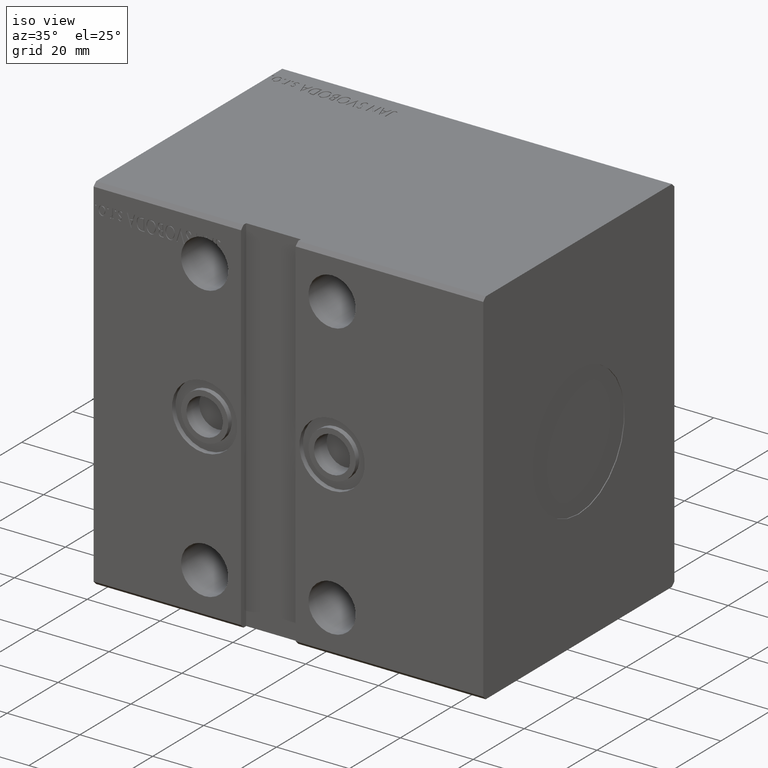
[diagram: clean part render]
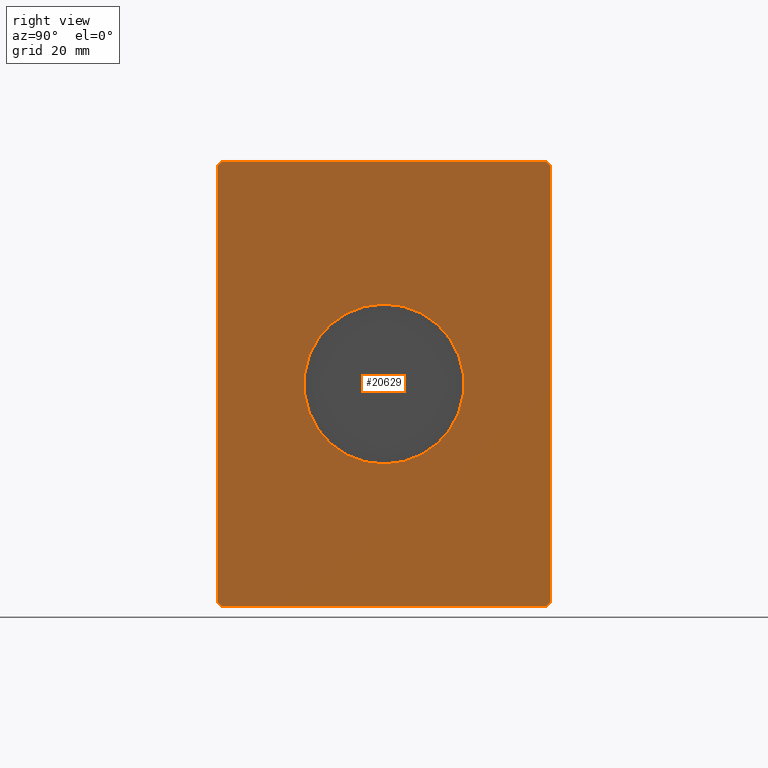
[diagram: tour spotlight — one face highlighted and labeled with its STEP entity id]
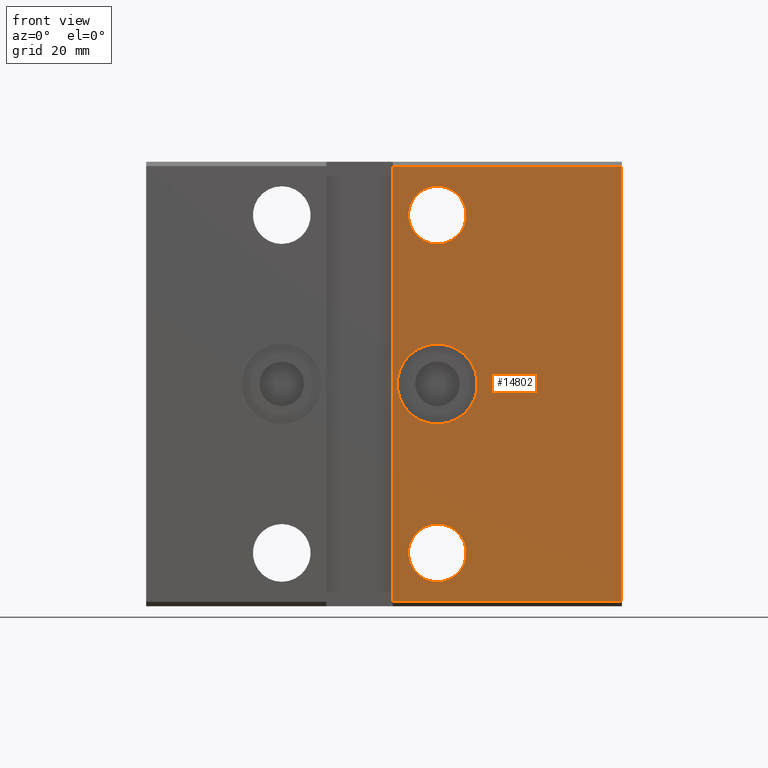
[diagram: tour spotlight — one face highlighted and labeled with its STEP entity id]
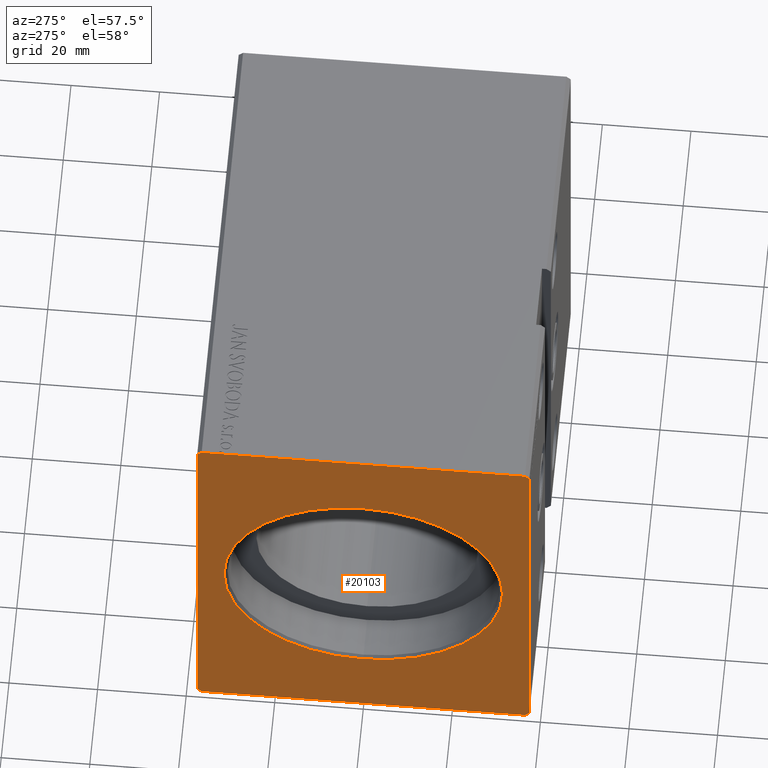
[diagram: tour spotlight — one face highlighted and labeled with its STEP entity id]
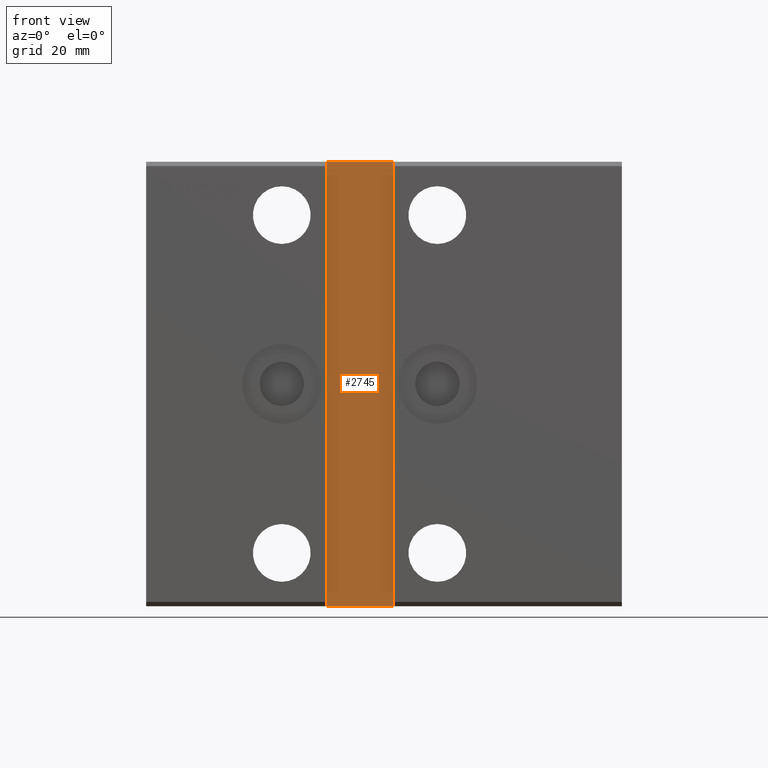
[diagram: tour spotlight — one face highlighted and labeled with its STEP entity id]
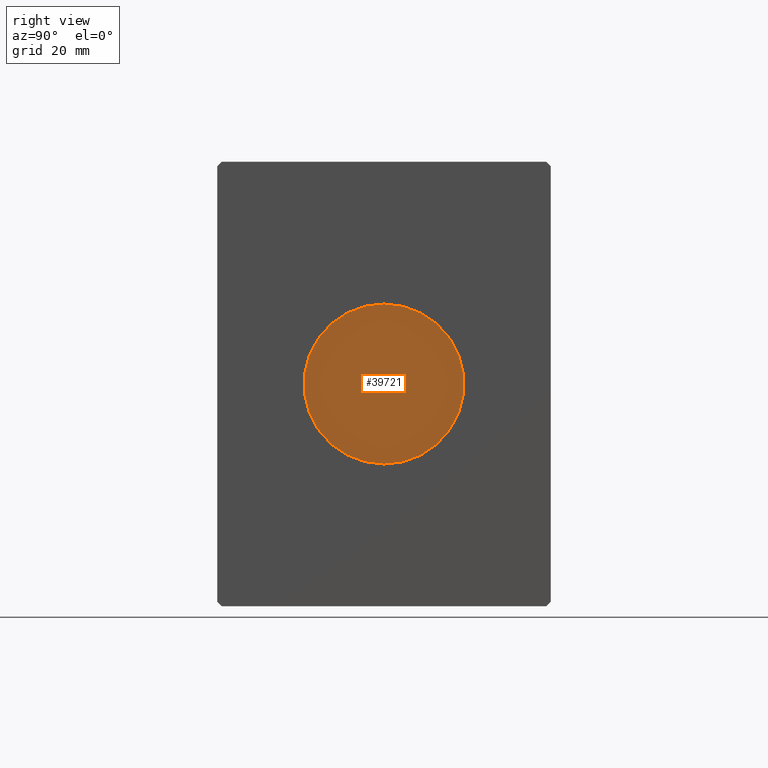
[diagram: tour spotlight — one face highlighted and labeled with its STEP entity id]
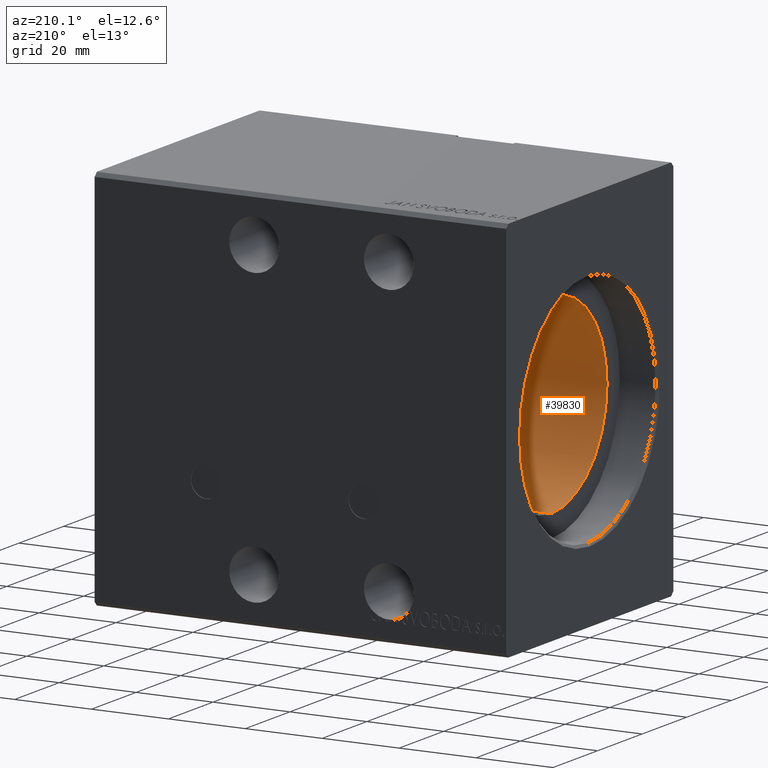
[diagram: tour spotlight — one face highlighted and labeled with its STEP entity id]
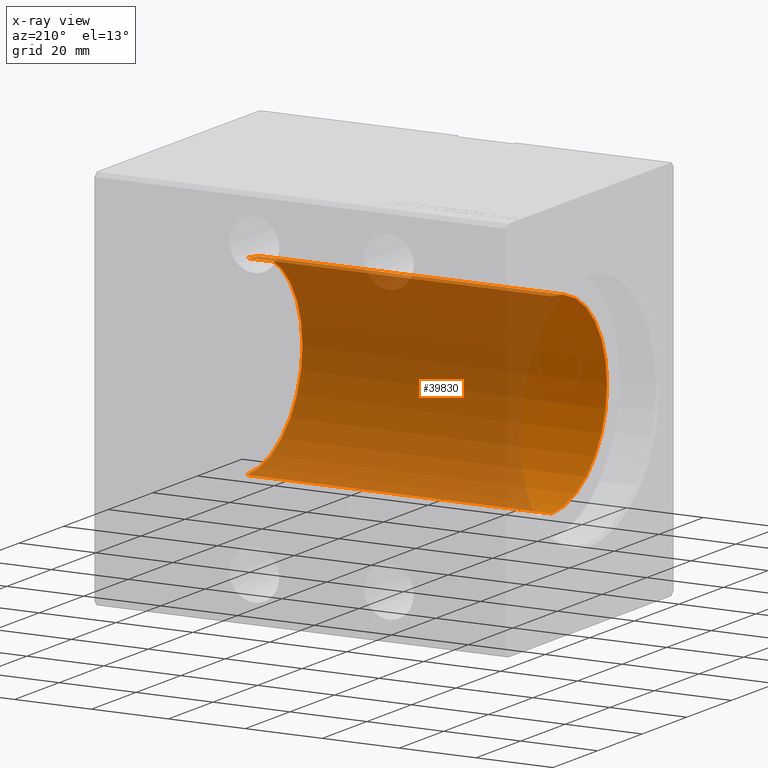
[diagram: x-ray of the same camera — body ghosted, this tour face saturated]
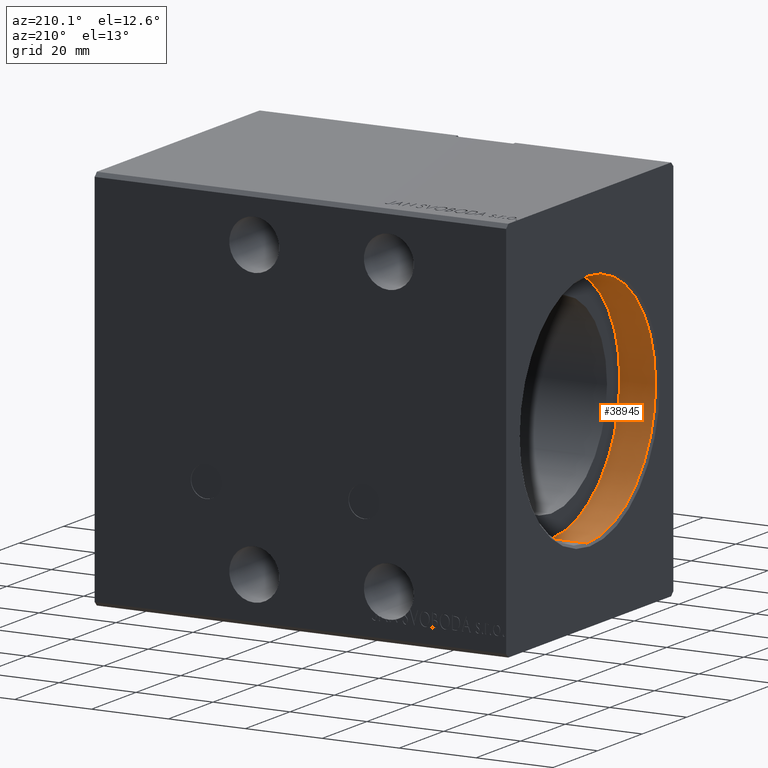
[diagram: tour spotlight — one face highlighted and labeled with its STEP entity id]
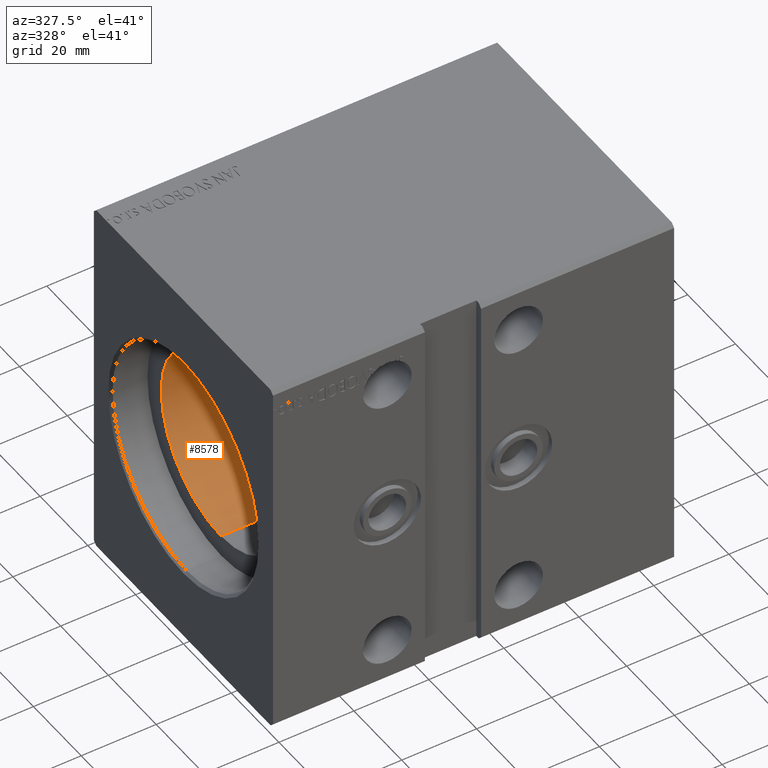
[diagram: tour spotlight — one face highlighted and labeled with its STEP entity id]
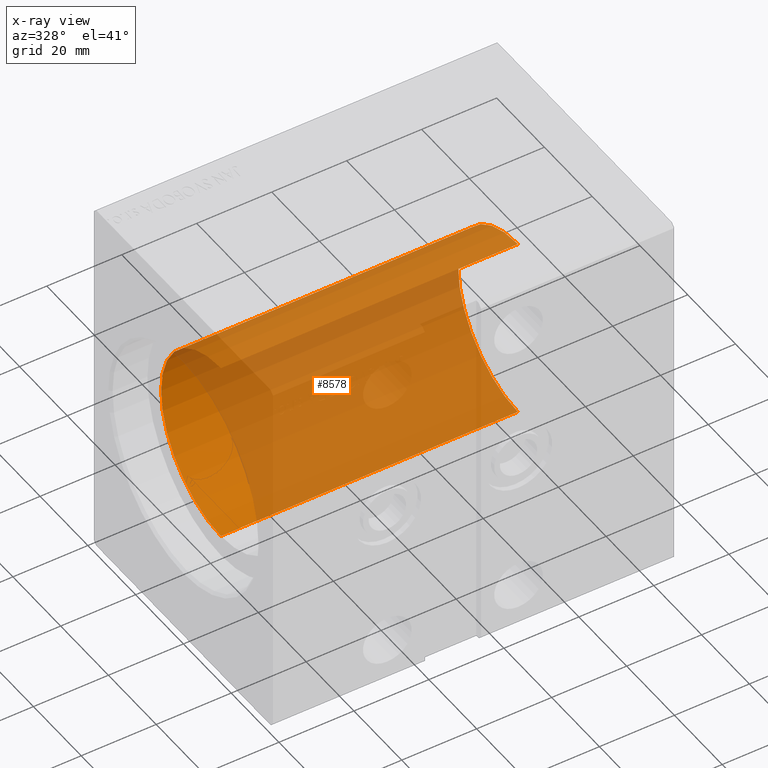
[diagram: x-ray of the same camera — body ghosted, this tour face saturated]
A machine part: a face-by-face anatomy tour. The part has 775 B-rep faces; the first image is the clean iso view, then the 8 largest visible faces are spotlighted one at a time (largest first), each with its STEP entity span.

Face 1 — right view, entity #20629. In plain terms, the highlighted planar face has unit normal (1, 0, 0).
Definition (entity closure, byte-faithful):
#1154 = DIRECTION ( 'NONE',  ( 0.000000000000000000, 0.000000000000000000, 1.000000000000000000 ) ) ;
#1582 = CARTESIAN_POINT ( 'NONE',  ( 107.0000000000000000, 0.000000000000000000, 0.000000000000000000 ) ) ;
#1747 = VERTEX_POINT ( 'NONE', #40442 ) ;
#1756 = AXIS2_PLACEMENT_3D ( 'NONE', #1582, #20745, #26720 ) ;
#4471 = VERTEX_POINT ( 'NONE', #16391 ) ;
#4619 = VECTOR ( 'NONE', #25911, 1000.000000000000000 ) ;
#6252 = CARTESIAN_POINT ( 'NONE',  ( 107.0000000000000000, -36.50000000000001421, 49.99999999999998579 ) ) ;
#7619 = CARTESIAN_POINT ( 'NONE',  ( 107.0000000000000000, 36.50000000000000711, -50.00000000000000000 ) ) ;
#8016 = CARTESIAN_POINT ( 'NONE',  ( 107.0000000000000000, 37.50000000000000711, 49.00000000000000000 ) ) ;
#8743 = CARTESIAN_POINT ( 'NONE',  ( 107.0000000000000000, 0.000000000000000000, -18.00000000000000000 ) ) ;
#9142 = CARTESIAN_POINT ( 'NONE',  ( 107.0000000000000000, -37.50000000000001421, -49.00000000000000000 ) ) ;
#9533 = VECTOR ( 'NONE', #11745, 1000.000000000000000 ) ;
#10598 = ORIENTED_EDGE ( 'NONE', *, *, #13272, .T. ) ;
#10748 = CARTESIAN_POINT ( 'NONE',  ( 107.0000000000000000, 0.000000000000000000, 0.000000000000000000 ) ) ;
#10752 = ORIENTED_EDGE ( 'NONE', *, *, #28898, .T. ) ;
#11745 = DIRECTION ( 'NONE',  ( 0.000000000000000000, 1.000000000000000000, 0.000000000000000000 ) ) ;
#12288 = VERTEX_POINT ( 'NONE', #29279 ) ;
#12487 = ORIENTED_EDGE ( 'NONE', *, *, #33639, .T. ) ;
#12533 = DIRECTION ( 'NONE',  ( 0.000000000000000000, -1.000000000000000000, -1.901066822988281457E-16 ) ) ;
#13272 = EDGE_CURVE ( 'NONE', #38986, #1747, #37462, .T. ) ;
#13333 = LINE ( 'NONE', #32898, #4619 ) ;
#14557 = FACE_OUTER_BOUND ( 'NONE', #30604, .T. ) ;
#15833 = CIRCLE ( 'NONE', #34306, 18.00000000000000000 ) ;
#16012 = VECTOR ( 'NONE', #36124, 1000.000000000000114 ) ;
#16062 = EDGE_CURVE ( 'NONE', #34821, #18884, #40568, .T. ) ;
#16391 = CARTESIAN_POINT ( 'NONE',  ( 107.0000000000000000, 37.50000000000000711, 49.00000000000000000 ) ) ;
#16538 = DIRECTION ( 'NONE',  ( 1.000000000000000000, 0.000000000000000000, 0.000000000000000000 ) ) ;
#16746 = ORIENTED_EDGE ( 'NONE', *, *, #23068, .F. ) ;
#17565 = VECTOR ( 'NONE', #1154, 1000.000000000000000 ) ;
#18059 = PLANE ( 'NONE',  #18402 ) ;
#18402 = AXIS2_PLACEMENT_3D ( 'NONE', #20953, #37024, #39699 ) ;
#18714 = EDGE_CURVE ( 'NONE', #27500, #4471, #32081, .T. ) ;
#18884 = VERTEX_POINT ( 'NONE', #6252 ) ;
#18941 = ORIENTED_EDGE ( 'NONE', *, *, #22666, .T. ) ;
#20629 = ADVANCED_FACE ( 'NONE', ( #40112, #14557 ), #18059, .T. ) ;
#20745 = DIRECTION ( 'NONE',  ( 1.000000000000000000, 0.000000000000000000, 0.000000000000000000 ) ) ;
#20794 = DIRECTION ( 'NONE',  ( 0.000000000000000000, -0.7071067811865474617, 0.7071067811865474617 ) ) ;
#20953 = CARTESIAN_POINT ( 'NONE',  ( 107.0000000000000000, 0.000000000000000000, 0.000000000000000000 ) ) ;
#20977 = CARTESIAN_POINT ( 'NONE',  ( 107.0000000000000000, -37.50000000000001421, -49.00000000000000000 ) ) ;
#21060 = LINE ( 'NONE', #36741, #16012 ) ;
#21196 = LINE ( 'NONE', #8016, #39100 ) ;
#21598 = DIRECTION ( 'NONE',  ( 0.000000000000000000, 0.7071067811865500152, -0.7071067811865451302 ) ) ;
#21646 = CARTESIAN_POINT ( 'NONE',  ( 107.0000000000000000, -36.50000000000000711, -50.00000000000000000 ) ) ;
#22158 = ORIENTED_EDGE ( 'NONE', *, *, #16062, .T. ) ;
#22534 = LINE ( 'NONE', #32212, #31261 ) ;
#22666 = EDGE_CURVE ( 'NONE', #26739, #38986, #13333, .T. ) ;
#23068 = EDGE_CURVE ( 'NONE', #25438, #12288, #15833, .T. ) ;
#24855 = ORIENTED_EDGE ( 'NONE', *, *, #18714, .T. ) ;
#25438 = VERTEX_POINT ( 'NONE', #8743 ) ;
#25715 = ORIENTED_EDGE ( 'NONE', *, *, #30339, .T. ) ;
#25911 = DIRECTION ( 'NONE',  ( 0.000000000000000000, 0.000000000000000000, -1.000000000000000000 ) ) ;
#26720 = DIRECTION ( 'NONE',  ( 0.000000000000000000, 0.000000000000000000, -1.000000000000000000 ) ) ;
#26739 = VERTEX_POINT ( 'NONE', #33610 ) ;
#27349 = CARTESIAN_POINT ( 'NONE',  ( 107.0000000000000000, 36.50000000000000711, 50.00000000000000000 ) ) ;
#27500 = VERTEX_POINT ( 'NONE', #34927 ) ;
#27615 = LINE ( 'NONE', #21646, #9533 ) ;
#28792 = CARTESIAN_POINT ( 'NONE',  ( 107.0000000000000000, 37.50000000000000711, -49.00000000000000000 ) ) ;
#28898 = EDGE_CURVE ( 'NONE', #1747, #29474, #27615, .T. ) ;
#29279 = CARTESIAN_POINT ( 'NONE',  ( 107.0000000000000000, 2.204364238465235428E-15, 18.00000000000000000 ) ) ;
#29474 = VERTEX_POINT ( 'NONE', #7619 ) ;
#30339 = EDGE_CURVE ( 'NONE', #29474, #27500, #21060, .T. ) ;
#30604 = EDGE_LOOP ( 'NONE', ( #12487, #22158, #37690, #18941, #10598, #10752, #25715, #24855 ) ) ;
#30723 = CIRCLE ( 'NONE', #1756, 18.00000000000000000 ) ;
#31123 = EDGE_LOOP ( 'NONE', ( #16746, #37299 ) ) ;
#31261 = VECTOR ( 'NONE', #34723, 1000.000000000000114 ) ;
#32081 = LINE ( 'NONE', #28792, #17565 ) ;
#32212 = CARTESIAN_POINT ( 'NONE',  ( 107.0000000000000000, -36.50000000000001421, 49.99999999999998579 ) ) ;
#32603 = DIRECTION ( 'NONE',  ( 0.000000000000000000, 0.000000000000000000, -1.000000000000000000 ) ) ;
#32898 = CARTESIAN_POINT ( 'NONE',  ( 107.0000000000000000, -37.50000000000001421, 48.99999999999998579 ) ) ;
#33610 = CARTESIAN_POINT ( 'NONE',  ( 107.0000000000000000, -37.50000000000001421, 48.99999999999998579 ) ) ;
#33639 = EDGE_CURVE ( 'NONE', #4471, #34821, #21196, .T. ) ;
#34042 = EDGE_CURVE ( 'NONE', #18884, #26739, #22534, .T. ) ;
#34306 = AXIS2_PLACEMENT_3D ( 'NONE', #10748, #16538, #32603 ) ;
#34723 = DIRECTION ( 'NONE',  ( 0.000000000000000000, -0.7071067811865474617, -0.7071067811865474617 ) ) ;
#34812 = CARTESIAN_POINT ( 'NONE',  ( 107.0000000000000000, 36.50000000000000711, 50.00000000000000000 ) ) ;
#34821 = VERTEX_POINT ( 'NONE', #27349 ) ;
#34927 = CARTESIAN_POINT ( 'NONE',  ( 107.0000000000000000, 37.50000000000000711, -49.00000000000000000 ) ) ;
#36124 = DIRECTION ( 'NONE',  ( 0.000000000000000000, 0.7071067811865474617, 0.7071067811865474617 ) ) ;
#36741 = CARTESIAN_POINT ( 'NONE',  ( 107.0000000000000000, 36.50000000000000711, -50.00000000000000000 ) ) ;
#37024 = DIRECTION ( 'NONE',  ( 1.000000000000000000, 0.000000000000000000, 0.000000000000000000 ) ) ;
#37299 = ORIENTED_EDGE ( 'NONE', *, *, #39708, .F. ) ;
#37462 = LINE ( 'NONE', #20977, #40509 ) ;
#37690 = ORIENTED_EDGE ( 'NONE', *, *, #34042, .T. ) ;
#37967 = VECTOR ( 'NONE', #12533, 1000.000000000000000 ) ;
#38986 = VERTEX_POINT ( 'NONE', #9142 ) ;
#39100 = VECTOR ( 'NONE', #20794, 1000.000000000000114 ) ;
#39699 = DIRECTION ( 'NONE',  ( 0.000000000000000000, 0.000000000000000000, -1.000000000000000000 ) ) ;
#39708 = EDGE_CURVE ( 'NONE', #12288, #25438, #30723, .T. ) ;
#40112 = FACE_BOUND ( 'NONE', #31123, .T. ) ;
#40442 = CARTESIAN_POINT ( 'NONE',  ( 107.0000000000000000, -36.50000000000000711, -50.00000000000000000 ) ) ;
#40509 = VECTOR ( 'NONE', #21598, 1000.000000000000114 ) ;
#40568 = LINE ( 'NONE', #34812, #37967 ) ;

Face 2 — front view, entity #14802. In plain terms, the highlighted planar face has unit normal (-0, 1, 0).
Definition (entity closure, byte-faithful):
#122 = CARTESIAN_POINT ( 'NONE',  ( 107.0000000000000000, -37.50000000000001421, -49.00000000000000000 ) ) ;
#552 = EDGE_CURVE ( 'NONE', #26739, #11077, #11919, .T. ) ;
#1053 = DIRECTION ( 'NONE',  ( 0.000000000000000000, 0.000000000000000000, 1.000000000000000000 ) ) ;
#1130 = EDGE_CURVE ( 'NONE', #7249, #3074, #14674, .T. ) ;
#1251 = ORIENTED_EDGE ( 'NONE', *, *, #40371, .F. ) ;
#1813 = EDGE_LOOP ( 'NONE', ( #31068, #21805 ) ) ;
#1871 = DIRECTION ( 'NONE',  ( -0.000000000000000000, 1.000000000000000000, 5.507058653894625853E-17 ) ) ;
#2082 = CARTESIAN_POINT ( 'NONE',  ( 65.50000000000000000, -37.50000000000001421, 38.00000000000000000 ) ) ;
#2417 = DIRECTION ( 'NONE',  ( 0.000000000000000000, 0.000000000000000000, 1.000000000000000000 ) ) ;
#3074 = VERTEX_POINT ( 'NONE', #23869 ) ;
#3244 = CARTESIAN_POINT ( 'NONE',  ( 65.50000000000001421, -37.50000000000001421, 8.999999999999992895 ) ) ;
#3594 = EDGE_CURVE ( 'NONE', #19519, #11077, #29143, .T. ) ;
#4619 = VECTOR ( 'NONE', #25911, 1000.000000000000000 ) ;
#5191 = CARTESIAN_POINT ( 'NONE',  ( 55.50000000000000000, -37.50000000000001421, 48.99999999999998579 ) ) ;
#6198 = DIRECTION ( 'NONE',  ( 0.000000000000000000, -0.000000000000000000, 1.000000000000000000 ) ) ;
#6874 = CARTESIAN_POINT ( 'NONE',  ( 65.50000000000000000, -37.50000000000001421, 38.00000000000000000 ) ) ;
#7249 = VERTEX_POINT ( 'NONE', #27681 ) ;
#7612 = AXIS2_PLACEMENT_3D ( 'NONE', #2082, #24536, #8667 ) ;
#7691 = VECTOR ( 'NONE', #12486, 1000.000000000000000 ) ;
#7886 = EDGE_LOOP ( 'NONE', ( #16181, #10514 ) ) ;
#8044 = CARTESIAN_POINT ( 'NONE',  ( 65.50000000000001421, -37.50000000000001421, -2.652630106891489909E-15 ) ) ;
#8667 = DIRECTION ( 'NONE',  ( 0.000000000000000000, 0.000000000000000000, 1.000000000000000000 ) ) ;
#9142 = CARTESIAN_POINT ( 'NONE',  ( 107.0000000000000000, -37.50000000000001421, -49.00000000000000000 ) ) ;
#9234 = EDGE_CURVE ( 'NONE', #21234, #32431, #19482, .T. ) ;
#9424 = VECTOR ( 'NONE', #31494, 1000.000000000000000 ) ;
#9667 = AXIS2_PLACEMENT_3D ( 'NONE', #6874, #33950, #2417 ) ;
#10090 = CARTESIAN_POINT ( 'NONE',  ( 107.0000000000000000, -37.50000000000001421, 48.99999999999998579 ) ) ;
#10514 = ORIENTED_EDGE ( 'NONE', *, *, #17092, .F. ) ;
#11077 = VERTEX_POINT ( 'NONE', #5191 ) ;
#11366 = EDGE_LOOP ( 'NONE', ( #14429, #18970, #1251, #25866 ) ) ;
#11919 = LINE ( 'NONE', #33990, #9424 ) ;
#12134 = CARTESIAN_POINT ( 'NONE',  ( 65.50000000000000000, -37.50000000000001421, 31.50000000000000000 ) ) ;
#12486 = DIRECTION ( 'NONE',  ( -1.000000000000000000, -0.000000000000000000, -0.000000000000000000 ) ) ;
#13333 = LINE ( 'NONE', #32898, #4619 ) ;
#13402 = CARTESIAN_POINT ( 'NONE',  ( 65.50000000000001421, -37.50000000000001421, -9.000000000000000000 ) ) ;
#13553 = AXIS2_PLACEMENT_3D ( 'NONE', #10090, #37523, #6198 ) ;
#13676 = CARTESIAN_POINT ( 'NONE',  ( 55.50000000000000000, -37.50000000000001421, 49.99999999999998579 ) ) ;
#13731 = CIRCLE ( 'NONE', #25616, 8.999999999999996447 ) ;
#14429 = ORIENTED_EDGE ( 'NONE', *, *, #552, .T. ) ;
#14674 = CIRCLE ( 'NONE', #30467, 6.499999999999999112 ) ;
#14802 = ADVANCED_FACE ( 'NONE', ( #19366, #21863, #18766, #22271 ), #40614, .F. ) ;
#16181 = ORIENTED_EDGE ( 'NONE', *, *, #9234, .F. ) ;
#16216 = ORIENTED_EDGE ( 'NONE', *, *, #28690, .T. ) ;
#16748 = AXIS2_PLACEMENT_3D ( 'NONE', #19803, #1871, #32573 ) ;
#17092 = EDGE_CURVE ( 'NONE', #32431, #21234, #39918, .T. ) ;
#17392 = VERTEX_POINT ( 'NONE', #13402 ) ;
#18766 = FACE_OUTER_BOUND ( 'NONE', #11366, .T. ) ;
#18970 = ORIENTED_EDGE ( 'NONE', *, *, #3594, .F. ) ;
#19366 = FACE_BOUND ( 'NONE', #39330, .T. ) ;
#19482 = CIRCLE ( 'NONE', #7612, 6.499999999999999112 ) ;
#19519 = VERTEX_POINT ( 'NONE', #31229 ) ;
#19612 = CARTESIAN_POINT ( 'NONE',  ( 65.50000000000001421, -37.50000000000001421, -38.00000000000000000 ) ) ;
#19803 = CARTESIAN_POINT ( 'NONE',  ( 65.50000000000001421, -37.50000000000001421, -2.652630106891489909E-15 ) ) ;
#21234 = VERTEX_POINT ( 'NONE', #12134 ) ;
#21406 = AXIS2_PLACEMENT_3D ( 'NONE', #19612, #29282, #1053 ) ;
#21805 = ORIENTED_EDGE ( 'NONE', *, *, #35733, .T. ) ;
#21863 = FACE_BOUND ( 'NONE', #1813, .T. ) ;
#22271 = FACE_BOUND ( 'NONE', #7886, .T. ) ;
#22575 = LINE ( 'NONE', #122, #7691 ) ;
#22666 = EDGE_CURVE ( 'NONE', #26739, #38986, #13333, .T. ) ;
#23869 = CARTESIAN_POINT ( 'NONE',  ( 65.50000000000001421, -37.50000000000001421, -31.50000000000000000 ) ) ;
#23994 = CIRCLE ( 'NONE', #16748, 8.999999999999996447 ) ;
#24536 = DIRECTION ( 'NONE',  ( 0.000000000000000000, -1.000000000000000000, -0.000000000000000000 ) ) ;
#25160 = ORIENTED_EDGE ( 'NONE', *, *, #25947, .T. ) ;
#25392 = CIRCLE ( 'NONE', #21406, 6.499999999999999112 ) ;
#25616 = AXIS2_PLACEMENT_3D ( 'NONE', #8044, #36490, #30702 ) ;
#25628 = DIRECTION ( 'NONE',  ( 0.000000000000000000, 0.000000000000000000, 1.000000000000000000 ) ) ;
#25866 = ORIENTED_EDGE ( 'NONE', *, *, #22666, .F. ) ;
#25911 = DIRECTION ( 'NONE',  ( 0.000000000000000000, 0.000000000000000000, -1.000000000000000000 ) ) ;
#25947 = EDGE_CURVE ( 'NONE', #17392, #35272, #13731, .T. ) ;
#26739 = VERTEX_POINT ( 'NONE', #33610 ) ;
#27681 = CARTESIAN_POINT ( 'NONE',  ( 65.50000000000001421, -37.50000000000001421, -44.50000000000000000 ) ) ;
#27782 = CARTESIAN_POINT ( 'NONE',  ( 65.50000000000000000, -37.50000000000001421, 44.50000000000000000 ) ) ;
#28690 = EDGE_CURVE ( 'NONE', #35272, #17392, #23994, .T. ) ;
#29143 = LINE ( 'NONE', #13676, #31183 ) ;
#29282 = DIRECTION ( 'NONE',  ( -0.000000000000000000, 1.000000000000000000, 0.000000000000000000 ) ) ;
#30467 = AXIS2_PLACEMENT_3D ( 'NONE', #32208, #32013, #25628 ) ;
#30702 = DIRECTION ( 'NONE',  ( 0.000000000000000000, 0.000000000000000000, 1.000000000000000000 ) ) ;
#31068 = ORIENTED_EDGE ( 'NONE', *, *, #1130, .T. ) ;
#31183 = VECTOR ( 'NONE', #35541, 1000.000000000000000 ) ;
#31229 = CARTESIAN_POINT ( 'NONE',  ( 55.50000000000002132, -37.50000000000001421, -48.99999999999997158 ) ) ;
#31494 = DIRECTION ( 'NONE',  ( -1.000000000000000000, -0.000000000000000000, -0.000000000000000000 ) ) ;
#32013 = DIRECTION ( 'NONE',  ( -0.000000000000000000, 1.000000000000000000, 0.000000000000000000 ) ) ;
#32208 = CARTESIAN_POINT ( 'NONE',  ( 65.50000000000001421, -37.50000000000001421, -38.00000000000000000 ) ) ;
#32431 = VERTEX_POINT ( 'NONE', #27782 ) ;
#32573 = DIRECTION ( 'NONE',  ( 0.000000000000000000, 0.000000000000000000, 1.000000000000000000 ) ) ;
#32898 = CARTESIAN_POINT ( 'NONE',  ( 107.0000000000000000, -37.50000000000001421, 48.99999999999998579 ) ) ;
#33610 = CARTESIAN_POINT ( 'NONE',  ( 107.0000000000000000, -37.50000000000001421, 48.99999999999998579 ) ) ;
#33950 = DIRECTION ( 'NONE',  ( 0.000000000000000000, -1.000000000000000000, -0.000000000000000000 ) ) ;
#33990 = CARTESIAN_POINT ( 'NONE',  ( 107.0000000000000000, -37.50000000000001421, 48.99999999999998579 ) ) ;
#35272 = VERTEX_POINT ( 'NONE', #3244 ) ;
#35541 = DIRECTION ( 'NONE',  ( -2.081668171172169006E-16, -0.000000000000000000, 1.000000000000000000 ) ) ;
#35733 = EDGE_CURVE ( 'NONE', #3074, #7249, #25392, .T. ) ;
#36490 = DIRECTION ( 'NONE',  ( -0.000000000000000000, 1.000000000000000000, 5.507058653894625853E-17 ) ) ;
#37523 = DIRECTION ( 'NONE',  ( -0.000000000000000000, 1.000000000000000000, 0.000000000000000000 ) ) ;
#38986 = VERTEX_POINT ( 'NONE', #9142 ) ;
#39330 = EDGE_LOOP ( 'NONE', ( #25160, #16216 ) ) ;
#39918 = CIRCLE ( 'NONE', #9667, 6.499999999999999112 ) ;
#40371 = EDGE_CURVE ( 'NONE', #38986, #19519, #22575, .T. ) ;
#40614 = PLANE ( 'NONE',  #13553 ) ;

Face 3 — auxiliary view, entity #20103. In plain terms, the highlighted planar face has unit normal (1, 0, 0).
Definition (entity closure, byte-faithful):
#357 = VECTOR ( 'NONE', #32363, 1000.000000000000114 ) ;
#425 = CIRCLE ( 'NONE', #30677, 31.45000000000002061 ) ;
#973 = CARTESIAN_POINT ( 'NONE',  ( 0.000000000000000000, -36.50000000000000711, -50.00000000000000000 ) ) ;
#1543 = LINE ( 'NONE', #8542, #3779 ) ;
#1642 = CARTESIAN_POINT ( 'NONE',  ( 0.000000000000000000, 37.50000000000000711, -49.00000000000000000 ) ) ;
#2357 = DIRECTION ( 'NONE',  ( 0.000000000000000000, -0.7071067811865474617, 0.7071067811865474617 ) ) ;
#2651 = ORIENTED_EDGE ( 'NONE', *, *, #40526, .F. ) ;
#3200 = LINE ( 'NONE', #12461, #11550 ) ;
#3779 = VECTOR ( 'NONE', #4841, 1000.000000000000114 ) ;
#3782 = ORIENTED_EDGE ( 'NONE', *, *, #11690, .F. ) ;
#4215 = DIRECTION ( 'NONE',  ( 1.000000000000000000, 0.000000000000000000, 0.000000000000000000 ) ) ;
#4374 = ORIENTED_EDGE ( 'NONE', *, *, #10796, .T. ) ;
#4486 = VERTEX_POINT ( 'NONE', #35165 ) ;
#4841 = DIRECTION ( 'NONE',  ( 0.000000000000000000, -0.7071067811865474617, -0.7071067811865474617 ) ) ;
#5046 = LINE ( 'NONE', #8940, #26749 ) ;
#5856 = EDGE_CURVE ( 'NONE', #29563, #23700, #34566, .T. ) ;
#5950 = DIRECTION ( 'NONE',  ( 0.000000000000000000, 0.000000000000000000, -1.000000000000000000 ) ) ;
#6274 = CARTESIAN_POINT ( 'NONE',  ( 0.000000000000000000, -37.50000000000001421, -49.00000000000000000 ) ) ;
#7233 = DIRECTION ( 'NONE',  ( 1.000000000000000000, 0.000000000000000000, 0.000000000000000000 ) ) ;
#7309 = EDGE_LOOP ( 'NONE', ( #4374, #38965 ) ) ;
#7709 = CARTESIAN_POINT ( 'NONE',  ( 0.000000000000000000, 36.50000000000000711, -50.00000000000000000 ) ) ;
#8456 = CARTESIAN_POINT ( 'NONE',  ( 0.000000000000000000, -36.50000000000001421, 49.99999999999998579 ) ) ;
#8542 = CARTESIAN_POINT ( 'NONE',  ( 0.000000000000000000, -36.50000000000001421, 49.99999999999998579 ) ) ;
#8662 = VERTEX_POINT ( 'NONE', #14558 ) ;
#8837 = DIRECTION ( 'NONE',  ( 0.000000000000000000, 1.000000000000000000, 0.000000000000000000 ) ) ;
#8940 = CARTESIAN_POINT ( 'NONE',  ( 0.000000000000000000, 37.50000000000000711, 49.00000000000000000 ) ) ;
#10796 = EDGE_CURVE ( 'NONE', #23700, #29563, #425, .T. ) ;
#11550 = VECTOR ( 'NONE', #18244, 1000.000000000000000 ) ;
#11690 = EDGE_CURVE ( 'NONE', #27626, #22646, #36274, .T. ) ;
#12376 = ORIENTED_EDGE ( 'NONE', *, *, #21244, .F. ) ;
#12461 = CARTESIAN_POINT ( 'NONE',  ( 0.000000000000000000, 36.50000000000000711, 50.00000000000000000 ) ) ;
#14494 = CARTESIAN_POINT ( 'NONE',  ( 0.000000000000000000, 36.50000000000000711, -50.00000000000000000 ) ) ;
#14558 = CARTESIAN_POINT ( 'NONE',  ( 0.000000000000000000, -37.50000000000001421, 48.99999999999998579 ) ) ;
#14819 = CARTESIAN_POINT ( 'NONE',  ( 0.000000000000000000, 37.50000000000000711, 49.00000000000000000 ) ) ;
#15455 = AXIS2_PLACEMENT_3D ( 'NONE', #38558, #7233, #32370 ) ;
#16008 = EDGE_CURVE ( 'NONE', #8662, #27626, #24699, .T. ) ;
#16570 = CARTESIAN_POINT ( 'NONE',  ( 0.000000000000000000, 37.50000000000000711, -49.00000000000000000 ) ) ;
#16853 = VERTEX_POINT ( 'NONE', #1642 ) ;
#17528 = VECTOR ( 'NONE', #5950, 1000.000000000000000 ) ;
#17988 = EDGE_CURVE ( 'NONE', #35824, #8662, #1543, .T. ) ;
#18244 = DIRECTION ( 'NONE',  ( 0.000000000000000000, -1.000000000000000000, -1.901066822988281457E-16 ) ) ;
#18575 = FACE_BOUND ( 'NONE', #7309, .T. ) ;
#19080 = CARTESIAN_POINT ( 'NONE',  ( 0.000000000000000000, 0.000000000000000000, 31.45000000000002061 ) ) ;
#19708 = EDGE_CURVE ( 'NONE', #22092, #16853, #33060, .T. ) ;
#20064 = LINE ( 'NONE', #16570, #38433 ) ;
#20103 = ADVANCED_FACE ( 'NONE', ( #18575, #33829 ), #37336, .F. ) ;
#21185 = VECTOR ( 'NONE', #30559, 1000.000000000000114 ) ;
#21244 = EDGE_CURVE ( 'NONE', #22646, #22092, #37078, .T. ) ;
#22092 = VERTEX_POINT ( 'NONE', #14494 ) ;
#22646 = VERTEX_POINT ( 'NONE', #973 ) ;
#23700 = VERTEX_POINT ( 'NONE', #19080 ) ;
#24313 = AXIS2_PLACEMENT_3D ( 'NONE', #24545, #28056, #31132 ) ;
#24339 = VECTOR ( 'NONE', #8837, 1000.000000000000000 ) ;
#24406 = ORIENTED_EDGE ( 'NONE', *, *, #36615, .F. ) ;
#24545 = CARTESIAN_POINT ( 'NONE',  ( 0.000000000000000000, 0.000000000000000000, 0.000000000000000000 ) ) ;
#24699 = LINE ( 'NONE', #37280, #17528 ) ;
#26749 = VECTOR ( 'NONE', #2357, 1000.000000000000114 ) ;
#27626 = VERTEX_POINT ( 'NONE', #6274 ) ;
#28056 = DIRECTION ( 'NONE',  ( 1.000000000000000000, 0.000000000000000000, 0.000000000000000000 ) ) ;
#28371 = ORIENTED_EDGE ( 'NONE', *, *, #17988, .F. ) ;
#28722 = EDGE_LOOP ( 'NONE', ( #2651, #30746, #39095, #12376, #3782, #35680, #28371, #24406 ) ) ;
#29144 = DIRECTION ( 'NONE',  ( 0.000000000000000000, 0.000000000000000000, 1.000000000000000000 ) ) ;
#29563 = VERTEX_POINT ( 'NONE', #37545 ) ;
#29833 = VERTEX_POINT ( 'NONE', #14819 ) ;
#30559 = DIRECTION ( 'NONE',  ( 0.000000000000000000, 0.7071067811865474617, 0.7071067811865474617 ) ) ;
#30677 = AXIS2_PLACEMENT_3D ( 'NONE', #38431, #4215, #38834 ) ;
#30746 = ORIENTED_EDGE ( 'NONE', *, *, #32124, .F. ) ;
#31091 = CARTESIAN_POINT ( 'NONE',  ( 0.000000000000000000, -36.50000000000000711, -50.00000000000000000 ) ) ;
#31132 = DIRECTION ( 'NONE',  ( 0.000000000000000000, 0.000000000000000000, -1.000000000000000000 ) ) ;
#32124 = EDGE_CURVE ( 'NONE', #16853, #29833, #20064, .T. ) ;
#32363 = DIRECTION ( 'NONE',  ( 0.000000000000000000, 0.7071067811865500152, -0.7071067811865451302 ) ) ;
#32370 = DIRECTION ( 'NONE',  ( 0.000000000000000000, 0.000000000000000000, -1.000000000000000000 ) ) ;
#33060 = LINE ( 'NONE', #7709, #21185 ) ;
#33184 = CARTESIAN_POINT ( 'NONE',  ( 0.000000000000000000, -37.50000000000001421, -49.00000000000000000 ) ) ;
#33829 = FACE_OUTER_BOUND ( 'NONE', #28722, .T. ) ;
#34566 = CIRCLE ( 'NONE', #15455, 31.45000000000002061 ) ;
#35165 = CARTESIAN_POINT ( 'NONE',  ( 0.000000000000000000, 36.50000000000000711, 50.00000000000000000 ) ) ;
#35680 = ORIENTED_EDGE ( 'NONE', *, *, #16008, .F. ) ;
#35824 = VERTEX_POINT ( 'NONE', #8456 ) ;
#36274 = LINE ( 'NONE', #33184, #357 ) ;
#36615 = EDGE_CURVE ( 'NONE', #4486, #35824, #3200, .T. ) ;
#37078 = LINE ( 'NONE', #31091, #24339 ) ;
#37280 = CARTESIAN_POINT ( 'NONE',  ( 0.000000000000000000, -37.50000000000001421, 48.99999999999998579 ) ) ;
#37336 = PLANE ( 'NONE',  #24313 ) ;
#37545 = CARTESIAN_POINT ( 'NONE',  ( 0.000000000000000000, 3.851514183318427194E-15, -31.45000000000002061 ) ) ;
#38431 = CARTESIAN_POINT ( 'NONE',  ( 0.000000000000000000, 0.000000000000000000, 0.000000000000000000 ) ) ;
#38433 = VECTOR ( 'NONE', #29144, 1000.000000000000000 ) ;
#38558 = CARTESIAN_POINT ( 'NONE',  ( 0.000000000000000000, 0.000000000000000000, 0.000000000000000000 ) ) ;
#38834 = DIRECTION ( 'NONE',  ( 0.000000000000000000, 0.000000000000000000, -1.000000000000000000 ) ) ;
#38965 = ORIENTED_EDGE ( 'NONE', *, *, #5856, .T. ) ;
#39095 = ORIENTED_EDGE ( 'NONE', *, *, #19708, .F. ) ;
#40526 = EDGE_CURVE ( 'NONE', #29833, #4486, #5046, .T. ) ;

Face 4 — front view, entity #2745. In plain terms, the highlighted planar face has unit normal (0, -1, 0).
Definition (entity closure, byte-faithful):
#251 = FACE_OUTER_BOUND ( 'NONE', #1901, .T. ) ;
#1106 = CARTESIAN_POINT ( 'NONE',  ( 55.50000000000002132, -35.50000000000001421, -50.00000000000000000 ) ) ;
#1673 = VERTEX_POINT ( 'NONE', #1106 ) ;
#1901 = EDGE_LOOP ( 'NONE', ( #37586, #18927, #17978, #10512 ) ) ;
#2745 = ADVANCED_FACE ( 'NONE', ( #251 ), #6448, .T. ) ;
#3160 = CARTESIAN_POINT ( 'NONE',  ( 0.000000000000000000, -35.50000000000001421, 1.101411730778925047E-16 ) ) ;
#3569 = AXIS2_PLACEMENT_3D ( 'NONE', #3160, #15911, #19015 ) ;
#6448 = PLANE ( 'NONE',  #3569 ) ;
#8359 = VECTOR ( 'NONE', #40123, 1000.000000000000000 ) ;
#10512 = ORIENTED_EDGE ( 'NONE', *, *, #27427, .T. ) ;
#10551 = DIRECTION ( 'NONE',  ( -2.081668171172169006E-16, -0.000000000000000000, 1.000000000000000000 ) ) ;
#12246 = DIRECTION ( 'NONE',  ( 1.000000000000000000, 0.000000000000000000, 0.000000000000000000 ) ) ;
#13610 = CARTESIAN_POINT ( 'NONE',  ( 40.50000000000000711, -35.50000000000001421, -50.00000000000000000 ) ) ;
#13760 = VECTOR ( 'NONE', #10551, 1000.000000000000000 ) ;
#15911 = DIRECTION ( 'NONE',  ( 0.000000000000000000, -1.000000000000000000, 0.000000000000000000 ) ) ;
#17403 = VECTOR ( 'NONE', #12246, 1000.000000000000000 ) ;
#17665 = EDGE_CURVE ( 'NONE', #21190, #34064, #30636, .T. ) ;
#17978 = ORIENTED_EDGE ( 'NONE', *, *, #19566, .T. ) ;
#18555 = VECTOR ( 'NONE', #37223, 1000.000000000000000 ) ;
#18927 = ORIENTED_EDGE ( 'NONE', *, *, #17665, .T. ) ;
#19015 = DIRECTION ( 'NONE',  ( 0.000000000000000000, -0.000000000000000000, -1.000000000000000000 ) ) ;
#19566 = EDGE_CURVE ( 'NONE', #34064, #34971, #37622, .T. ) ;
#19952 = EDGE_CURVE ( 'NONE', #1673, #21190, #38783, .T. ) ;
#21190 = VERTEX_POINT ( 'NONE', #37693 ) ;
#21729 = LINE ( 'NONE', #33897, #17403 ) ;
#24642 = CARTESIAN_POINT ( 'NONE',  ( 40.50000000000000000, -35.50000000000001421, 49.99999999999998579 ) ) ;
#27427 = EDGE_CURVE ( 'NONE', #34971, #1673, #21729, .T. ) ;
#28115 = CARTESIAN_POINT ( 'NONE',  ( 40.50000000000000000, -35.50000000000001421, 49.99999999999998579 ) ) ;
#30432 = CARTESIAN_POINT ( 'NONE',  ( 40.50000000000000000, -35.50000000000001421, 49.99999999999998579 ) ) ;
#30636 = LINE ( 'NONE', #30432, #8359 ) ;
#31800 = CARTESIAN_POINT ( 'NONE',  ( 55.50000000000000000, -35.50000000000001421, 49.99999999999998579 ) ) ;
#33897 = CARTESIAN_POINT ( 'NONE',  ( 40.50000000000000711, -35.50000000000001421, -50.00000000000000000 ) ) ;
#34064 = VERTEX_POINT ( 'NONE', #28115 ) ;
#34971 = VERTEX_POINT ( 'NONE', #13610 ) ;
#37223 = DIRECTION ( 'NONE',  ( 6.938893903907229610E-17, 0.000000000000000000, -1.000000000000000000 ) ) ;
#37586 = ORIENTED_EDGE ( 'NONE', *, *, #19952, .T. ) ;
#37622 = LINE ( 'NONE', #24642, #18555 ) ;
#37693 = CARTESIAN_POINT ( 'NONE',  ( 55.50000000000000000, -35.50000000000001421, 49.99999999999998579 ) ) ;
#38783 = LINE ( 'NONE', #31800, #13760 ) ;
#40123 = DIRECTION ( 'NONE',  ( -1.000000000000000000, -0.000000000000000000, -0.000000000000000000 ) ) ;

Face 5 — right view, entity #39721. In plain terms, the highlighted planar face has unit normal (1, 0, 0).
Definition (entity closure, byte-faithful):
#1182 = PLANE ( 'NONE',  #16893 ) ;
#2954 = CIRCLE ( 'NONE', #8207, 18.00000000000000000 ) ;
#4453 = VERTEX_POINT ( 'NONE', #12898 ) ;
#4970 = ORIENTED_EDGE ( 'NONE', *, *, #40284, .T. ) ;
#8207 = AXIS2_PLACEMENT_3D ( 'NONE', #16144, #32026, #18843 ) ;
#10006 = CARTESIAN_POINT ( 'NONE',  ( 106.7999999999999972, 0.000000000000000000, 0.000000000000000000 ) ) ;
#10853 = CARTESIAN_POINT ( 'NONE',  ( 106.7999999999999972, 0.000000000000000000, 0.000000000000000000 ) ) ;
#12898 = CARTESIAN_POINT ( 'NONE',  ( 106.7999999999999972, 2.204364238465235428E-15, 18.00000000000000000 ) ) ;
#16144 = CARTESIAN_POINT ( 'NONE',  ( 106.7999999999999972, 0.000000000000000000, 0.000000000000000000 ) ) ;
#16893 = AXIS2_PLACEMENT_3D ( 'NONE', #10853, #23020, #39083 ) ;
#17547 = CIRCLE ( 'NONE', #35344, 18.00000000000000000 ) ;
#18843 = DIRECTION ( 'NONE',  ( 0.000000000000000000, 0.000000000000000000, -1.000000000000000000 ) ) ;
#22490 = EDGE_LOOP ( 'NONE', ( #34070, #4970 ) ) ;
#23020 = DIRECTION ( 'NONE',  ( 1.000000000000000000, 0.000000000000000000, 0.000000000000000000 ) ) ;
#26928 = FACE_OUTER_BOUND ( 'NONE', #22490, .T. ) ;
#27581 = EDGE_CURVE ( 'NONE', #39892, #4453, #2954, .T. ) ;
#28360 = CARTESIAN_POINT ( 'NONE',  ( 106.7999999999999972, 0.000000000000000000, -18.00000000000000000 ) ) ;
#31850 = DIRECTION ( 'NONE',  ( 1.000000000000000000, 0.000000000000000000, 0.000000000000000000 ) ) ;
#32026 = DIRECTION ( 'NONE',  ( 1.000000000000000000, 0.000000000000000000, 0.000000000000000000 ) ) ;
#34070 = ORIENTED_EDGE ( 'NONE', *, *, #27581, .T. ) ;
#35344 = AXIS2_PLACEMENT_3D ( 'NONE', #10006, #31850, #38434 ) ;
#38434 = DIRECTION ( 'NONE',  ( 0.000000000000000000, 0.000000000000000000, -1.000000000000000000 ) ) ;
#39083 = DIRECTION ( 'NONE',  ( 0.000000000000000000, 0.000000000000000000, -1.000000000000000000 ) ) ;
#39721 = ADVANCED_FACE ( 'NONE', ( #26928 ), #1182, .T. ) ;
#39892 = VERTEX_POINT ( 'NONE', #28360 ) ;
#40284 = EDGE_CURVE ( 'NONE', #4453, #39892, #17547, .T. ) ;

Face 6 — auxiliary view, entity #39830. An x-ray twin of the same camera follows (body ghosted, this face saturated) — the face is partly hidden behind the body. In plain terms, the highlighted cylindrical surface (partial cylindrical patch) has radius 25 mm, axis along (-1, -0, -0).
Definition (entity closure, byte-faithful):
#353 = DIRECTION ( 'NONE',  ( -1.000000000000000000, 0.000000000000000000, 0.000000000000000000 ) ) ;
#570 = VERTEX_POINT ( 'NONE', #34608 ) ;
#1306 = CARTESIAN_POINT ( 'NONE',  ( 89.20000000000000284, 0.000000000000000000, 0.000000000000000000 ) ) ;
#1307 = CARTESIAN_POINT ( 'NONE',  ( 89.20000000000000284, 3.061616997868383043E-15, -25.00000000000000000 ) ) ;
#1725 = DIRECTION ( 'NONE',  ( -1.000000000000000000, -0.000000000000000000, -0.000000000000000000 ) ) ;
#5190 = CIRCLE ( 'NONE', #32197, 25.00000000000000000 ) ;
#5290 = CYLINDRICAL_SURFACE ( 'NONE', #34702, 25.00000000000000000 ) ;
#5489 = DIRECTION ( 'NONE',  ( 0.000000000000000000, 0.000000000000000000, 1.000000000000000000 ) ) ;
#6640 = ORIENTED_EDGE ( 'NONE', *, *, #26381, .F. ) ;
#7178 = CARTESIAN_POINT ( 'NONE',  ( 9.999999999999994671, 0.000000000000000000, 0.000000000000000000 ) ) ;
#8664 = VERTEX_POINT ( 'NONE', #36417 ) ;
#10890 = VECTOR ( 'NONE', #1725, 1000.000000000000000 ) ;
#12290 = CARTESIAN_POINT ( 'NONE',  ( 89.20000000000000284, 0.000000000000000000, 0.000000000000000000 ) ) ;
#12723 = CIRCLE ( 'NONE', #15368, 25.00000000000000000 ) ;
#13495 = LINE ( 'NONE', #29160, #22433 ) ;
#15368 = AXIS2_PLACEMENT_3D ( 'NONE', #7178, #17612, #33688 ) ;
#15835 = EDGE_LOOP ( 'NONE', ( #6640, #35591, #30092, #25324 ) ) ;
#16265 = CARTESIAN_POINT ( 'NONE',  ( 89.20000000000000284, 3.061616997868383043E-15, -25.00000000000000000 ) ) ;
#17612 = DIRECTION ( 'NONE',  ( -1.000000000000000000, 0.000000000000000000, 0.000000000000000000 ) ) ;
#20975 = VERTEX_POINT ( 'NONE', #22487 ) ;
#22433 = VECTOR ( 'NONE', #22783, 1000.000000000000000 ) ;
#22487 = CARTESIAN_POINT ( 'NONE',  ( 9.999999999999994671, 0.000000000000000000, 25.00000000000000000 ) ) ;
#22783 = DIRECTION ( 'NONE',  ( -1.000000000000000000, -0.000000000000000000, -0.000000000000000000 ) ) ;
#23810 = EDGE_CURVE ( 'NONE', #570, #20975, #13495, .T. ) ;
#24451 = DIRECTION ( 'NONE',  ( -1.000000000000000000, -0.000000000000000000, -0.000000000000000000 ) ) ;
#25324 = ORIENTED_EDGE ( 'NONE', *, *, #23810, .F. ) ;
#26381 = EDGE_CURVE ( 'NONE', #35954, #570, #5190, .T. ) ;
#29160 = CARTESIAN_POINT ( 'NONE',  ( 89.20000000000000284, 0.000000000000000000, 25.00000000000000000 ) ) ;
#29535 = LINE ( 'NONE', #1307, #10890 ) ;
#30092 = ORIENTED_EDGE ( 'NONE', *, *, #30109, .T. ) ;
#30109 = EDGE_CURVE ( 'NONE', #8664, #20975, #12723, .T. ) ;
#30225 = FACE_OUTER_BOUND ( 'NONE', #15835, .T. ) ;
#32197 = AXIS2_PLACEMENT_3D ( 'NONE', #1306, #353, #36343 ) ;
#33688 = DIRECTION ( 'NONE',  ( 0.000000000000000000, 0.000000000000000000, 1.000000000000000000 ) ) ;
#34608 = CARTESIAN_POINT ( 'NONE',  ( 89.20000000000000284, 0.000000000000000000, 25.00000000000000000 ) ) ;
#34702 = AXIS2_PLACEMENT_3D ( 'NONE', #12290, #24451, #5489 ) ;
#35591 = ORIENTED_EDGE ( 'NONE', *, *, #36768, .T. ) ;
#35954 = VERTEX_POINT ( 'NONE', #16265 ) ;
#36343 = DIRECTION ( 'NONE',  ( 0.000000000000000000, 0.000000000000000000, 1.000000000000000000 ) ) ;
#36417 = CARTESIAN_POINT ( 'NONE',  ( 9.999999999999994671, 3.061616997868383043E-15, -25.00000000000000000 ) ) ;
#36768 = EDGE_CURVE ( 'NONE', #35954, #8664, #29535, .T. ) ;
#39830 = ADVANCED_FACE ( 'NONE', ( #30225 ), #5290, .F. ) ;

Face 7 — auxiliary view, entity #38945. In plain terms, the highlighted cylindrical surface (partial cylindrical patch) has radius 30.75 mm, axis along (-1, -0, -0).
Definition (entity closure, byte-faithful):
#1684 = CARTESIAN_POINT ( 'NONE',  ( 10.00000000000000000, 0.000000000000000000, 30.75000000000000355 ) ) ;
#1727 = AXIS2_PLACEMENT_3D ( 'NONE', #31594, #2757, #15313 ) ;
#2297 = CARTESIAN_POINT ( 'NONE',  ( 10.00000000000000000, 0.000000000000000000, 0.000000000000000000 ) ) ;
#2757 = DIRECTION ( 'NONE',  ( -1.000000000000000000, -0.000000000000000000, -0.000000000000000000 ) ) ;
#3117 = VERTEX_POINT ( 'NONE', #9029 ) ;
#3635 = VERTEX_POINT ( 'NONE', #8712 ) ;
#6548 = AXIS2_PLACEMENT_3D ( 'NONE', #2297, #27443, #40005 ) ;
#7501 = DIRECTION ( 'NONE',  ( -1.000000000000000000, -0.000000000000000000, -0.000000000000000000 ) ) ;
#8712 = CARTESIAN_POINT ( 'NONE',  ( 10.00000000000000000, 0.000000000000000000, 30.75000000000000355 ) ) ;
#9029 = CARTESIAN_POINT ( 'NONE',  ( 0.7000000000000234923, 3.765788907378111328E-15, -30.75000000000000355 ) ) ;
#10958 = CARTESIAN_POINT ( 'NONE',  ( 10.00000000000000000, 3.765788907378111328E-15, -30.75000000000000355 ) ) ;
#11128 = CIRCLE ( 'NONE', #39432, 30.75000000000000355 ) ;
#11753 = ORIENTED_EDGE ( 'NONE', *, *, #26288, .T. ) ;
#12367 = EDGE_LOOP ( 'NONE', ( #14717, #23177, #11753, #33505 ) ) ;
#12675 = LINE ( 'NONE', #25259, #29017 ) ;
#13824 = LINE ( 'NONE', #1684, #24748 ) ;
#14717 = ORIENTED_EDGE ( 'NONE', *, *, #20161, .F. ) ;
#15313 = DIRECTION ( 'NONE',  ( 0.000000000000000000, 0.000000000000000000, 1.000000000000000000 ) ) ;
#15695 = EDGE_CURVE ( 'NONE', #3635, #31291, #13824, .T. ) ;
#16102 = CARTESIAN_POINT ( 'NONE',  ( 0.7000000000000234923, 0.000000000000000000, 30.75000000000000355 ) ) ;
#18416 = FACE_OUTER_BOUND ( 'NONE', #12367, .T. ) ;
#19026 = CYLINDRICAL_SURFACE ( 'NONE', #1727, 30.75000000000000355 ) ;
#19824 = DIRECTION ( 'NONE',  ( -1.000000000000000000, -0.000000000000000000, -0.000000000000000000 ) ) ;
#20161 = EDGE_CURVE ( 'NONE', #39123, #3635, #34221, .T. ) ;
#22854 = EDGE_CURVE ( 'NONE', #39123, #3117, #12675, .T. ) ;
#23177 = ORIENTED_EDGE ( 'NONE', *, *, #22854, .T. ) ;
#24680 = CARTESIAN_POINT ( 'NONE',  ( 0.7000000000000234923, 0.000000000000000000, 0.000000000000000000 ) ) ;
#24748 = VECTOR ( 'NONE', #19824, 1000.000000000000000 ) ;
#25259 = CARTESIAN_POINT ( 'NONE',  ( 10.00000000000000000, 3.765788907378111328E-15, -30.75000000000000355 ) ) ;
#26288 = EDGE_CURVE ( 'NONE', #3117, #31291, #11128, .T. ) ;
#27443 = DIRECTION ( 'NONE',  ( -1.000000000000000000, 0.000000000000000000, 0.000000000000000000 ) ) ;
#29017 = VECTOR ( 'NONE', #7501, 1000.000000000000000 ) ;
#31291 = VERTEX_POINT ( 'NONE', #16102 ) ;
#31594 = CARTESIAN_POINT ( 'NONE',  ( 10.00000000000000000, 0.000000000000000000, 0.000000000000000000 ) ) ;
#33505 = ORIENTED_EDGE ( 'NONE', *, *, #15695, .F. ) ;
#34221 = CIRCLE ( 'NONE', #6548, 30.75000000000000355 ) ;
#37261 = DIRECTION ( 'NONE',  ( 0.000000000000000000, 0.000000000000000000, -1.000000000000000000 ) ) ;
#38945 = ADVANCED_FACE ( 'NONE', ( #18416 ), #19026, .F. ) ;
#39123 = VERTEX_POINT ( 'NONE', #10958 ) ;
#39432 = AXIS2_PLACEMENT_3D ( 'NONE', #24680, #40749, #37261 ) ;
#40005 = DIRECTION ( 'NONE',  ( 0.000000000000000000, 0.000000000000000000, 1.000000000000000000 ) ) ;
#40749 = DIRECTION ( 'NONE',  ( -1.000000000000000000, 0.000000000000000000, 0.000000000000000000 ) ) ;

Face 8 — auxiliary view, entity #8578. An x-ray twin of the same camera follows (body ghosted, this face saturated) — the face is partly hidden behind the body. In plain terms, the highlighted cylindrical surface (partial cylindrical patch) has radius 25 mm, axis along (-1, -0, -0).
Definition (entity closure, byte-faithful):
#570 = VERTEX_POINT ( 'NONE', #34608 ) ;
#1307 = CARTESIAN_POINT ( 'NONE',  ( 89.20000000000000284, 3.061616997868383043E-15, -25.00000000000000000 ) ) ;
#1323 = CIRCLE ( 'NONE', #19773, 25.00000000000000000 ) ;
#1725 = DIRECTION ( 'NONE',  ( -1.000000000000000000, -0.000000000000000000, -0.000000000000000000 ) ) ;
#3510 = DIRECTION ( 'NONE',  ( 0.000000000000000000, 0.000000000000000000, 1.000000000000000000 ) ) ;
#6206 = AXIS2_PLACEMENT_3D ( 'NONE', #40279, #27305, #39872 ) ;
#6633 = ORIENTED_EDGE ( 'NONE', *, *, #36768, .F. ) ;
#8578 = ADVANCED_FACE ( 'NONE', ( #29208 ), #28612, .F. ) ;
#8664 = VERTEX_POINT ( 'NONE', #36417 ) ;
#10890 = VECTOR ( 'NONE', #1725, 1000.000000000000000 ) ;
#13495 = LINE ( 'NONE', #29160, #22433 ) ;
#13748 = ORIENTED_EDGE ( 'NONE', *, *, #31216, .F. ) ;
#16239 = DIRECTION ( 'NONE',  ( -1.000000000000000000, -0.000000000000000000, -0.000000000000000000 ) ) ;
#16265 = CARTESIAN_POINT ( 'NONE',  ( 89.20000000000000284, 3.061616997868383043E-15, -25.00000000000000000 ) ) ;
#16835 = CARTESIAN_POINT ( 'NONE',  ( 89.20000000000000284, 0.000000000000000000, 0.000000000000000000 ) ) ;
#18657 = ORIENTED_EDGE ( 'NONE', *, *, #23810, .T. ) ;
#19773 = AXIS2_PLACEMENT_3D ( 'NONE', #38325, #34448, #3510 ) ;
#20975 = VERTEX_POINT ( 'NONE', #22487 ) ;
#22342 = EDGE_CURVE ( 'NONE', #20975, #8664, #1323, .T. ) ;
#22433 = VECTOR ( 'NONE', #22783, 1000.000000000000000 ) ;
#22487 = CARTESIAN_POINT ( 'NONE',  ( 9.999999999999994671, 0.000000000000000000, 25.00000000000000000 ) ) ;
#22783 = DIRECTION ( 'NONE',  ( -1.000000000000000000, -0.000000000000000000, -0.000000000000000000 ) ) ;
#23810 = EDGE_CURVE ( 'NONE', #570, #20975, #13495, .T. ) ;
#25919 = DIRECTION ( 'NONE',  ( 0.000000000000000000, 0.000000000000000000, 1.000000000000000000 ) ) ;
#25936 = CIRCLE ( 'NONE', #6206, 25.00000000000000000 ) ;
#26461 = EDGE_LOOP ( 'NONE', ( #6633, #13748, #18657, #31870 ) ) ;
#27305 = DIRECTION ( 'NONE',  ( -1.000000000000000000, 0.000000000000000000, 0.000000000000000000 ) ) ;
#28612 = CYLINDRICAL_SURFACE ( 'NONE', #35300, 25.00000000000000000 ) ;
#29160 = CARTESIAN_POINT ( 'NONE',  ( 89.20000000000000284, 0.000000000000000000, 25.00000000000000000 ) ) ;
#29208 = FACE_OUTER_BOUND ( 'NONE', #26461, .T. ) ;
#29535 = LINE ( 'NONE', #1307, #10890 ) ;
#31216 = EDGE_CURVE ( 'NONE', #570, #35954, #25936, .T. ) ;
#31870 = ORIENTED_EDGE ( 'NONE', *, *, #22342, .T. ) ;
#34448 = DIRECTION ( 'NONE',  ( -1.000000000000000000, 0.000000000000000000, 0.000000000000000000 ) ) ;
#34608 = CARTESIAN_POINT ( 'NONE',  ( 89.20000000000000284, 0.000000000000000000, 25.00000000000000000 ) ) ;
#35300 = AXIS2_PLACEMENT_3D ( 'NONE', #16835, #16239, #25919 ) ;
#35954 = VERTEX_POINT ( 'NONE', #16265 ) ;
#36417 = CARTESIAN_POINT ( 'NONE',  ( 9.999999999999994671, 3.061616997868383043E-15, -25.00000000000000000 ) ) ;
#36768 = EDGE_CURVE ( 'NONE', #35954, #8664, #29535, .T. ) ;
#38325 = CARTESIAN_POINT ( 'NONE',  ( 9.999999999999994671, 0.000000000000000000, 0.000000000000000000 ) ) ;
#39872 = DIRECTION ( 'NONE',  ( 0.000000000000000000, 0.000000000000000000, 1.000000000000000000 ) ) ;
#40279 = CARTESIAN_POINT ( 'NONE',  ( 89.20000000000000284, 0.000000000000000000, 0.000000000000000000 ) ) ;